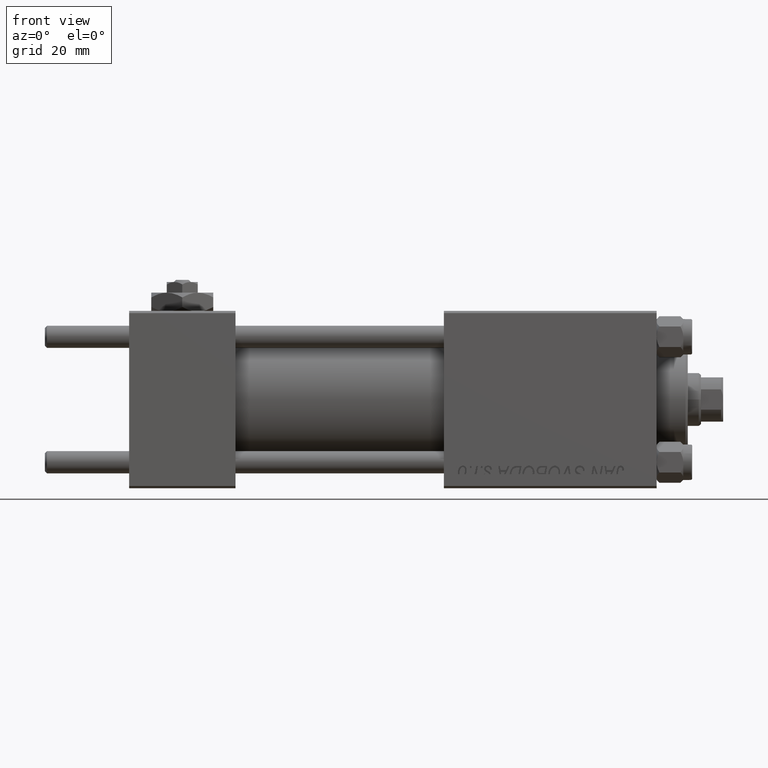
[diagram: clean part render]
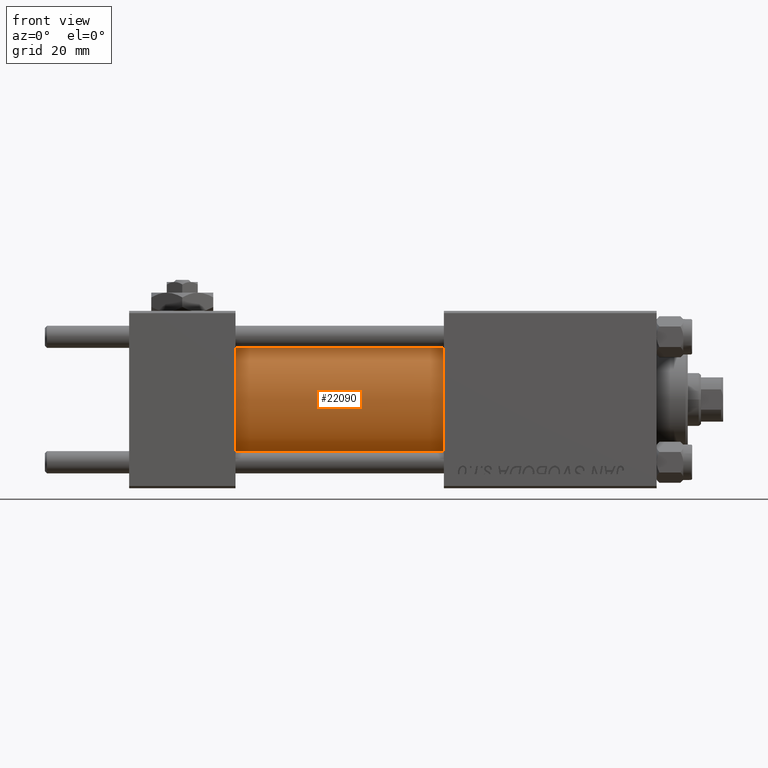
[diagram: same view with one face highlighted and labeled with its STEP entity id]
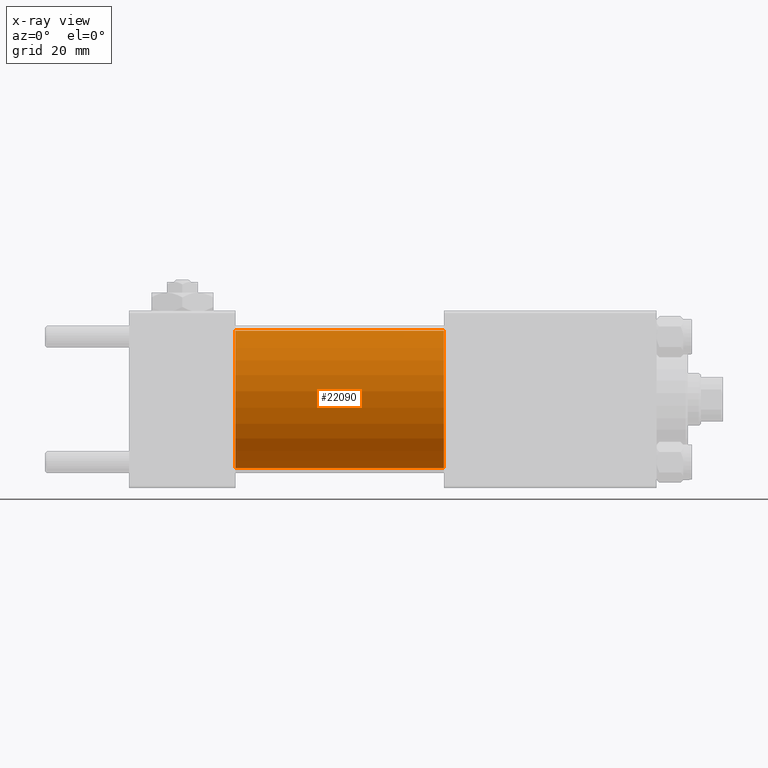
[diagram: x-ray of the same camera — body ghosted, the highlighted face saturated]
A machine part, front view. The second image highlights one B-rep face of the part: STEP entity #22090.
The next image is the same camera in x-ray: the body ghosted, the highlighted face saturated — about 0% of this face is hidden behind the body in this view.
In plain terms, the highlighted cylindrical surface (partial cylindrical patch) has radius 15.5 mm, axis along (-1, -0, -0).
Its self-contained STEP definition (entity closure, byte-faithful):
#1205 = ORIENTED_EDGE ( 'NONE', *, *, #29423, .F. ) ;
#2096 = VERTEX_POINT ( 'NONE', #13435 ) ;
#2299 = AXIS2_PLACEMENT_3D ( 'NONE', #11002, #11518, #27400 ) ;
#2398 = DIRECTION ( 'NONE',  ( -1.000000000000000000, -0.000000000000000000, -0.000000000000000000 ) ) ;
#2793 = CARTESIAN_POINT ( 'NONE',  ( 24.00000000000000000, 0.000000000000000000, 0.000000000000000000 ) ) ;
#4427 = DIRECTION ( 'NONE',  ( 0.000000000000000000, 0.000000000000000000, -1.000000000000000000 ) ) ;
#6034 = CARTESIAN_POINT ( 'NONE',  ( 71.00000000000001421, 0.000000000000000000, 15.50000000000000000 ) ) ;
#7582 = ORIENTED_EDGE ( 'NONE', *, *, #21491, .F. ) ;
#11002 = CARTESIAN_POINT ( 'NONE',  ( 71.00000000000001421, 0.000000000000000000, 0.000000000000000000 ) ) ;
#11518 = DIRECTION ( 'NONE',  ( -1.000000000000000000, -0.000000000000000000, -0.000000000000000000 ) ) ;
#13309 = DIRECTION ( 'NONE',  ( -1.000000000000000000, -0.000000000000000000, -0.000000000000000000 ) ) ;
#13435 = CARTESIAN_POINT ( 'NONE',  ( 71.00000000000001421, 1.898202538678397557E-15, -15.50000000000000000 ) ) ;
#14680 = VECTOR ( 'NONE', #2398, 1000.000000000000000 ) ;
#14728 = CIRCLE ( 'NONE', #51338, 15.50000000000000000 ) ;
#19831 = ORIENTED_EDGE ( 'NONE', *, *, #24263, .T. ) ;
#20643 = CARTESIAN_POINT ( 'NONE',  ( 71.00000000000001421, 0.000000000000000000, 15.50000000000000000 ) ) ;
#21491 = EDGE_CURVE ( 'NONE', #41227, #2096, #14728, .T. ) ;
#22090 = ADVANCED_FACE ( 'NONE', ( #35468 ), #47202, .T. ) ;
#22747 = EDGE_LOOP ( 'NONE', ( #1205, #7582, #19831, #35608 ) ) ;
#24263 = EDGE_CURVE ( 'NONE', #41227, #32624, #46125, .T. ) ;
#27400 = DIRECTION ( 'NONE',  ( 0.000000000000000000, 0.000000000000000000, 1.000000000000000000 ) ) ;
#27610 = CARTESIAN_POINT ( 'NONE',  ( 71.00000000000001421, 0.000000000000000000, 0.000000000000000000 ) ) ;
#29423 = EDGE_CURVE ( 'NONE', #2096, #48117, #49002, .T. ) ;
#29730 = CARTESIAN_POINT ( 'NONE',  ( 24.00000000000000000, 1.898202538678397557E-15, -15.50000000000000000 ) ) ;
#32624 = VERTEX_POINT ( 'NONE', #37627 ) ;
#34037 = DIRECTION ( 'NONE',  ( 1.000000000000000000, 0.000000000000000000, 0.000000000000000000 ) ) ;
#34737 = AXIS2_PLACEMENT_3D ( 'NONE', #2793, #34037, #42357 ) ;
#35419 = DIRECTION ( 'NONE',  ( 1.000000000000000000, 0.000000000000000000, 0.000000000000000000 ) ) ;
#35468 = FACE_OUTER_BOUND ( 'NONE', #22747, .T. ) ;
#35608 = ORIENTED_EDGE ( 'NONE', *, *, #49613, .T. ) ;
#37509 = CARTESIAN_POINT ( 'NONE',  ( 71.00000000000001421, 1.898202538678397557E-15, -15.50000000000000000 ) ) ;
#37627 = CARTESIAN_POINT ( 'NONE',  ( 24.00000000000000000, 0.000000000000000000, 15.50000000000000000 ) ) ;
#40664 = VECTOR ( 'NONE', #13309, 1000.000000000000000 ) ;
#41227 = VERTEX_POINT ( 'NONE', #20643 ) ;
#41401 = CIRCLE ( 'NONE', #34737, 15.50000000000000000 ) ;
#42357 = DIRECTION ( 'NONE',  ( 0.000000000000000000, 0.000000000000000000, 1.000000000000000000 ) ) ;
#46125 = LINE ( 'NONE', #6034, #14680 ) ;
#47202 = CYLINDRICAL_SURFACE ( 'NONE', #2299, 15.50000000000000000 ) ;
#48117 = VERTEX_POINT ( 'NONE', #29730 ) ;
#49002 = LINE ( 'NONE', #37509, #40664 ) ;
#49613 = EDGE_CURVE ( 'NONE', #32624, #48117, #41401, .T. ) ;
#51338 = AXIS2_PLACEMENT_3D ( 'NONE', #27610, #35419, #4427 ) ;